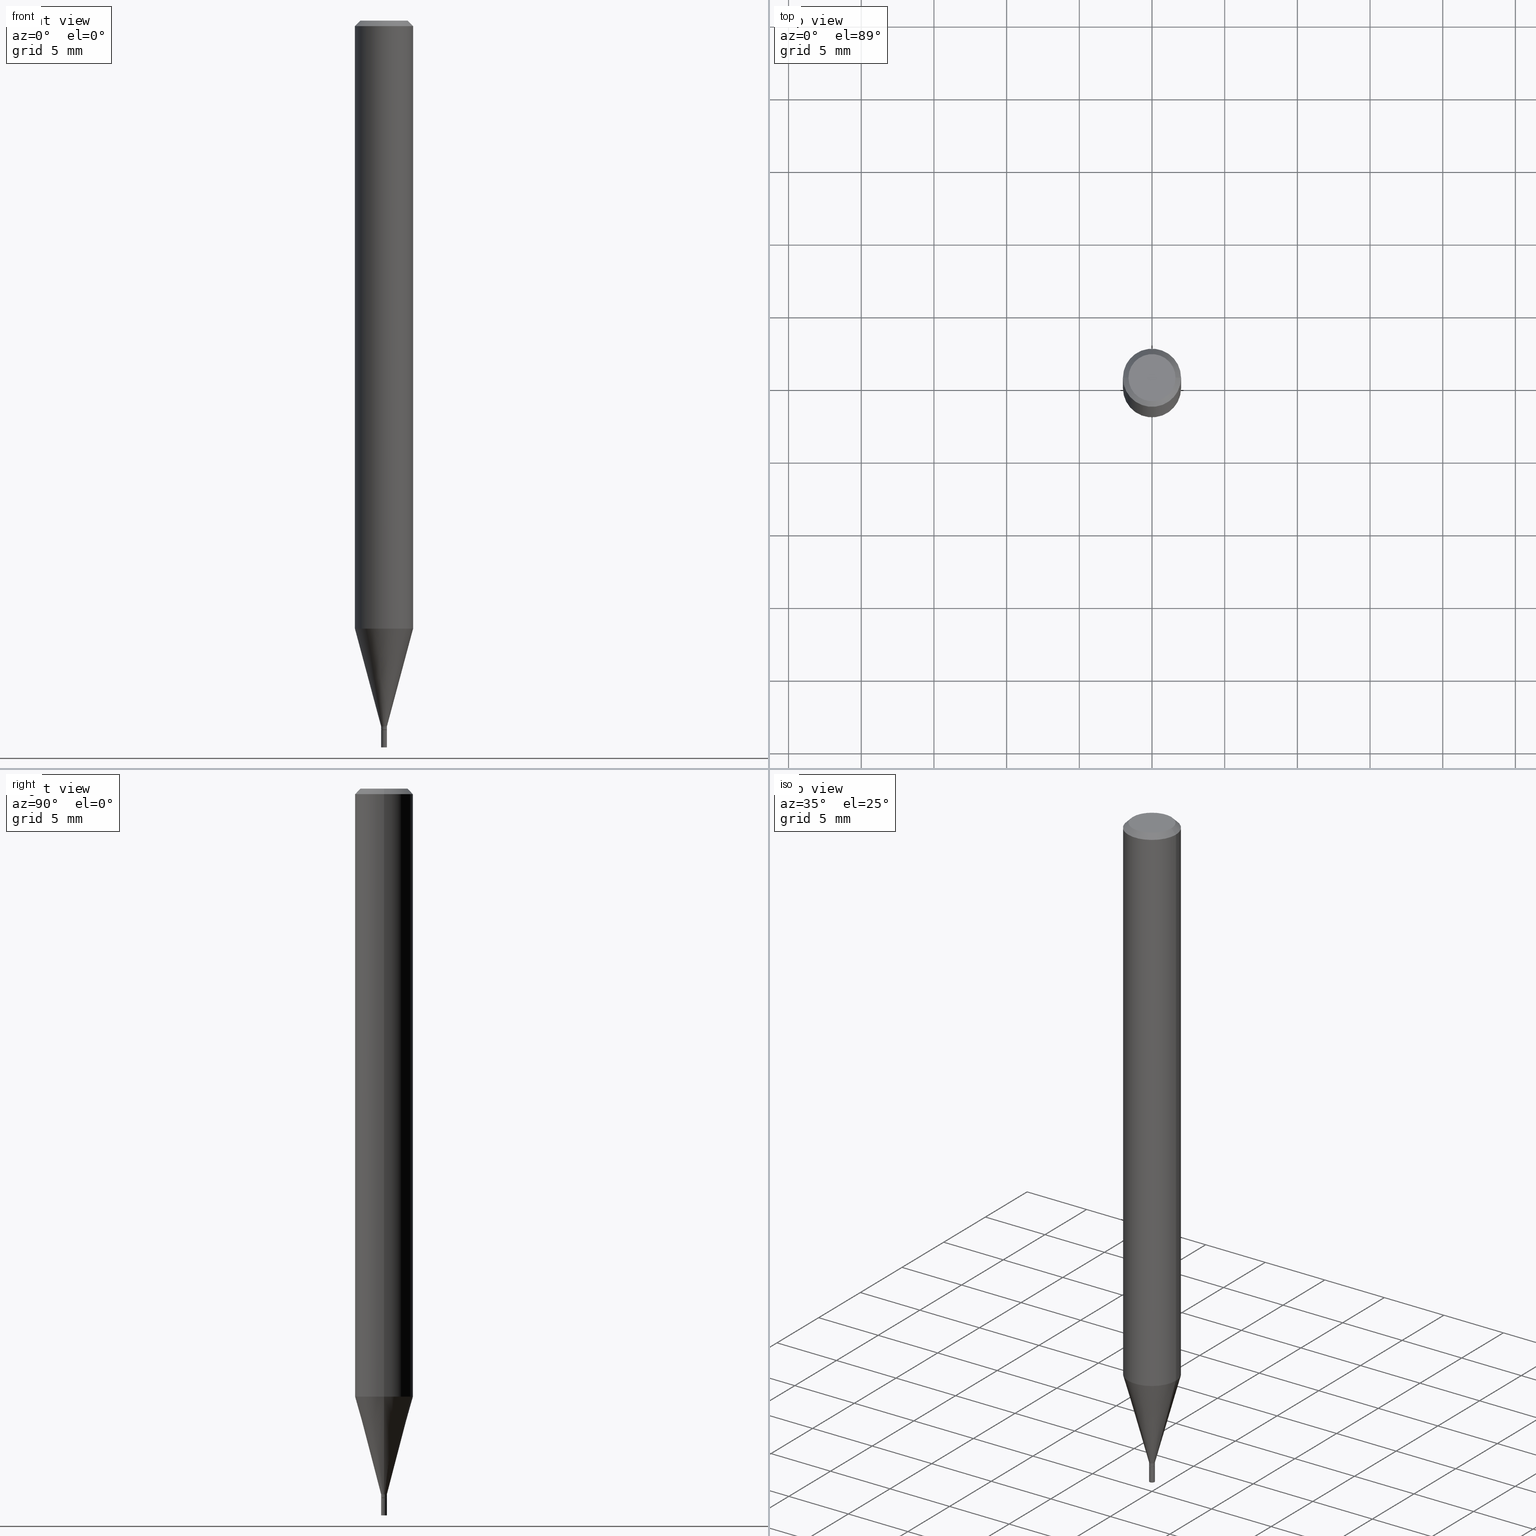
[diagram: canonical four-view strip — front | top / right | iso, engineering-drawing reading convention]
A machine part, canonical four-view strip (front | top / right | iso — engineering-drawing reading convention). The complete STEP part file that produces these views, byte-faithful:
ISO-10303-21;
HEADER;
FILE_DESCRIPTION (( 'STEP AP203' ),
    '1' );
FILE_NAME ('01877.STEP',
    '2024-03-20T02:18:43',
    ( '' ),
    ( '' ),
    'SwSTEP 2.0',
    'SolidWorks 2023',
    '' );
FILE_SCHEMA (( 'CONFIG_CONTROL_DESIGN' ));
ENDSEC;

DATA;
#1 = EDGE_CURVE ( 'NONE', #133, #443, #170, .T. ) ;
#2 = FACE_OUTER_BOUND ( 'NONE', #137, .T. ) ;
#3 = VECTOR ( 'NONE', #258, 39.37007874015748143 ) ;
#4 = CONICAL_SURFACE ( 'NONE', #309, 0.007349999999999998895, 0.7853981633974718157 ) ;
#5 = DIRECTION ( 'NONE',  ( 1.000000000000000000, -6.982962677686261977E-15, 0.000000000000000000 ) ) ;
#6 = CIRCLE ( 'NONE', #236, 0.06375000000000000111 ) ;
#7 = PERSON_AND_ORGANIZATION ( #193, #225 ) ;
#8 = ORIENTED_EDGE ( 'NONE', *, *, #269, .T. ) ;
#9 = CARTESIAN_POINT ( 'NONE',  ( 0.007849999999999917807, -6.728782836218509990E-15, -1.911499999999999977 ) ) ;
#10 = COORDINATED_UNIVERSAL_TIME_OFFSET ( 5, 0, .BEHIND. ) ;
#11 = CALENDAR_DATE ( 2024, 19, 3 ) ;
#12 = AXIS2_PLACEMENT_3D ( 'NONE', #409, #113, #194 ) ;
#13 = AXIS2_PLACEMENT_3D ( 'NONE', #99, #349, #93 ) ;
#14 = CALENDAR_DATE ( 2024, 19, 3 ) ;
#15 = EDGE_CURVE ( 'NONE', #291, #54, #65, .T. ) ;
#16 = DIRECTION ( 'NONE',  ( 0.000000000000000000, 0.000000000000000000, 1.000000000000000000 ) ) ;
#17 = CC_DESIGN_PERSON_AND_ORGANIZATION_ASSIGNMENT ( #226, #405, ( #310 ) ) ;
#18 = MECHANICAL_CONTEXT ( 'NONE', #285, 'mechanical' ) ;
#19 = DIRECTION ( 'NONE',  ( 1.000000000000000000, -6.982962677686265922E-15, 4.947888571036530338E-29 ) ) ;
#20 = PRODUCT_DEFINITION_SHAPE ( 'NONE', 'NONE',  #435 ) ;
#21 = CLOSED_SHELL ( 'NONE', ( #134, #150, #75, #326 ) ) ;
#22 = CARTESIAN_POINT ( 'NONE',  ( 3.668203209277705088E-31, -5.237222008264718399E-17, -0.01499999999999999944 ) ) ;
#23 = ORIENTED_EDGE ( 'NONE', *, *, #269, .F. ) ;
#24 = PLANE ( 'NONE',  #343 ) ;
#25 = AXIS2_PLACEMENT_3D ( 'NONE', #46, #308, #331 ) ;
#26 = DIRECTION ( 'NONE',  ( -2.445468806185136597E-29, 3.491481338843145583E-15, 1.000000000000000000 ) ) ;
#27 = VERTEX_POINT ( 'NONE', #35 ) ;
#28 = CARTESIAN_POINT ( 'NONE',  ( -0.007849999999999999339, -6.734804451158865551E-15, -1.921300000000000008 ) ) ;
#29 = ORIENTED_EDGE ( 'NONE', *, *, #120, .T. ) ;
#30 = DATE_AND_TIME ( #275, #49 ) ;
#31 = CONICAL_SURFACE ( 'NONE', #300, 0.07875000000000000056, 0.7853981633974771448 ) ;
#32 = DIRECTION ( 'NONE',  ( 1.000000000000000000, -6.982962677686261977E-15, 0.000000000000000000 ) ) ;
#33 = EDGE_LOOP ( 'NONE', ( #62, #374, #56, #356 ) ) ;
#34 = COORDINATED_UNIVERSAL_TIME_OFFSET ( 5, 0, .BEHIND. ) ;
#35 = CARTESIAN_POINT ( 'NONE',  ( -0.06375000000000000111, 4.713499807438214450E-16, -8.648154804784131215E-16 ) ) ;
#36 = DIRECTION ( 'NONE',  ( -2.445468806185136597E-29, 3.491481338843145583E-15, 1.000000000000000000 ) ) ;
#37 = ADVANCED_BREP_SHAPE_REPRESENTATION ( '01877', ( #235, #400, #448 ), #335 ) ;
#38 = VERTEX_POINT ( 'NONE', #319 ) ;
#39 = CIRCLE ( 'NONE', #95, 0.007849999999999917807 ) ;
#40 = CARTESIAN_POINT ( 'NONE',  ( 0.07875000000000000056, -6.300020540374364263E-15, -1.646897597743366859 ) ) ;
#41 = DIRECTION ( 'NONE',  ( -2.445468806185136597E-29, 3.491481338843145583E-15, 1.000000000000000000 ) ) ;
#42 = ORIENTED_EDGE ( 'NONE', *, *, #228, .T. ) ;
#43 = APPROVAL_PERSON_ORGANIZATION ( #7, #398, #324 ) ;
#44 = DIRECTION ( 'NONE',  ( -2.445468806185136597E-29, 3.491481338843145583E-15, 1.000000000000000000 ) ) ;
#45 = DIRECTION ( 'NONE',  ( -2.445468806185136597E-29, 3.491481338843145583E-15, 1.000000000000000000 ) ) ;
#46 = CARTESIAN_POINT ( 'NONE',  ( 3.668203209277705088E-31, -5.237222008264718399E-17, -0.01499999999999999944 ) ) ;
#47 = DIRECTION ( 'NONE',  ( 1.000000000000000000, -6.982962677686276177E-15, 0.000000000000000000 ) ) ;
#48 = VECTOR ( 'NONE', #330, 39.37007874015748143 ) ;
#49 = LOCAL_TIME ( 22, 18, 43.00000000000000000, #462 ) ;
#50 = ORIENTED_EDGE ( 'NONE', *, *, #171, .F. ) ;
#51 = CARTESIAN_POINT ( 'NONE',  ( -0.007849999999999999339, -6.734804451158865551E-15, -1.968500000000000139 ) ) ;
#52 = CC_DESIGN_PERSON_AND_ORGANIZATION_ASSIGNMENT ( #79, #207, ( #369 ) ) ;
#53 = DIRECTION ( 'NONE',  ( -2.445468806185136597E-29, 3.491481338843145583E-15, 1.000000000000000000 ) ) ;
#54 = VERTEX_POINT ( 'NONE', #366 ) ;
#55 = ADVANCED_FACE ( 'NONE', ( #371 ), #205, .T. ) ;
#56 = ORIENTED_EDGE ( 'NONE', *, *, #358, .F. ) ;
#57 = AXIS2_PLACEMENT_3D ( 'NONE', #347, #26, #446 ) ;
#58 = CC_DESIGN_DATE_AND_TIME_ASSIGNMENT ( #30, #183, ( #435 ) ) ;
#59 = ORIENTED_EDGE ( 'NONE', *, *, #242, .F. ) ;
#60 = EDGE_CURVE ( 'NONE', #459, #161, #223, .T. ) ;
#61 = ORIENTED_EDGE ( 'NONE', *, *, #247, .F. ) ;
#62 = ORIENTED_EDGE ( 'NONE', *, *, #383, .T. ) ;
#63 = CLOSED_SHELL ( 'NONE', ( #339, #146, #55, #237, #379, #68, #456, #210, #202, #252, #267, #83 ) ) ;
#64 = ORIENTED_EDGE ( 'NONE', *, *, #87, .T. ) ;
#65 = LINE ( 'NONE', #209, #196 ) ;
#66 = DIRECTION ( 'NONE',  ( -2.445468806185136597E-29, 3.491481338843145583E-15, 1.000000000000000000 ) ) ;
#67 = ORIENTED_EDGE ( 'NONE', *, *, #136, .T. ) ;
#68 = ADVANCED_FACE ( 'NONE', ( #450 ), #272, .T. ) ;
#69 = DIRECTION ( 'NONE',  ( 1.000000000000000000, -6.982962677686261189E-15, 0.000000000000000000 ) ) ;
#70 = CARTESIAN_POINT ( 'NONE',  ( 0.000000000000000000, 0.000000000000000000, 0.000000000000000000 ) ) ;
#71 = ORIENTED_EDGE ( 'NONE', *, *, #136, .F. ) ;
#72 = DIRECTION ( 'NONE',  ( 1.000000000000000000, -6.982962677686267499E-15, 4.876176775795936353E-29 ) ) ;
#73 = SHAPE_DEFINITION_REPRESENTATION ( #20, #37 ) ;
#74 = CARTESIAN_POINT ( 'NONE',  ( -0.007849999999999917807, -5.904374399768500220E-15, -1.911499999999999977 ) ) ;
#75 = ADVANCED_FACE ( 'NONE', ( #382 ), #424, .T. ) ;
#76 = ORIENTED_EDGE ( 'NONE', *, *, #296, .F. ) ;
#77 = CARTESIAN_POINT ( 'NONE',  ( 0.07875000000000000056, -5.926364374071552647E-16, -0.01499999999999999944 ) ) ;
#78 = AXIS2_PLACEMENT_3D ( 'NONE', #70, #41, #381 ) ;
#79 = PERSON_AND_ORGANIZATION ( #193, #225 ) ;
#80 = CARTESIAN_POINT ( 'NONE',  ( -0.007849999999999919542, 5.577760475716729290E-17, -3.861364045850061986E-31 ) ) ;
#81 = EDGE_CURVE ( 'NONE', #318, #54, #334, .T. ) ;
#82 = DIRECTION ( 'NONE',  ( 1.000000000000000000, -6.982962677686265922E-15, 0.000000000000000000 ) ) ;
#83 = ADVANCED_FACE ( 'NONE', ( #257 ), #276, .T. ) ;
#84 = PLANE ( 'NONE',  #253 ) ;
#85 = CIRCLE ( 'NONE', #351, 0.007849999999999999339 ) ;
#86 = ORIENTED_EDGE ( 'NONE', *, *, #296, .T. ) ;
#87 = EDGE_CURVE ( 'NONE', #128, #443, #428, .T. ) ;
#88 = DIRECTION ( 'NONE',  ( -1.000000000000000000, 6.982962677686265922E-15, 0.000000000000000000 ) ) ;
#89 = ORIENTED_EDGE ( 'NONE', *, *, #260, .F. ) ;
#90 = DIRECTION ( 'NONE',  ( 1.000000000000000000, -6.982962677686265922E-15, 4.947888571036530338E-29 ) ) ;
#91 = DIRECTION ( 'NONE',  ( 1.000000000000000000, -6.982962677686265922E-15, 4.876176775795935793E-29 ) ) ;
#92 = CC_DESIGN_PERSON_AND_ORGANIZATION_ASSIGNMENT ( #138, #313, ( #435 ) ) ;
#93 = DIRECTION ( 'NONE',  ( 1.000000000000000000, -6.982962677686267499E-15, 4.876176775795936353E-29 ) ) ;
#94 = FACE_OUTER_BOUND ( 'NONE', #227, .T. ) ;
#95 = AXIS2_PLACEMENT_3D ( 'NONE', #110, #222, #115 ) ;
#96 = VECTOR ( 'NONE', #214, 39.37007874015748143 ) ;
#97 = DIRECTION ( 'NONE',  ( 2.438088387897960049E-29, -3.491481338843145188E-15, -1.000000000000000000 ) ) ;
#98 = VERTEX_POINT ( 'NONE', #404 ) ;
#99 = CARTESIAN_POINT ( 'NONE',  ( 0.000000000000000000, 0.000000000000000000, 0.000000000000000000 ) ) ;
#100 = EDGE_CURVE ( 'NONE', #54, #318, #314, .T. ) ;
#101 = EDGE_LOOP ( 'NONE', ( #240, #322, #23, #61 ) ) ;
#102 = ORIENTED_EDGE ( 'NONE', *, *, #81, .T. ) ;
#103 = CYLINDRICAL_SURFACE ( 'NONE', #13, 0.007849999999999919542 ) ;
#104 = CIRCLE ( 'NONE', #447, 0.007849999999999917807 ) ;
#105 = CIRCLE ( 'NONE', #123, 0.007849999999999921277 ) ;
#106 = CIRCLE ( 'NONE', #25, 0.07875000000000000056 ) ;
#107 = DIRECTION ( 'NONE',  ( -2.445468806185136597E-29, 3.491481338843145583E-15, 1.000000000000000000 ) ) ;
#108 = DIRECTION ( 'NONE',  ( 1.000000000000000000, -6.982962677686327453E-15, 0.000000000000000000 ) ) ;
#109 = EDGE_LOOP ( 'NONE', ( #126, #421 ) ) ;
#110 = CARTESIAN_POINT ( 'NONE',  ( 4.674513623022888811E-29, -6.673966579198673201E-15, -1.911499999999999977 ) ) ;
#111 = LINE ( 'NONE', #188, #320 ) ;
#112 = PERSON_AND_ORGANIZATION ( #193, #225 ) ;
#113 = DIRECTION ( 'NONE',  ( -2.438088387897960049E-29, 3.491481338843145188E-15, 1.000000000000000000 ) ) ;
#114 = AXIS2_PLACEMENT_3D ( 'NONE', #187, #44, #200 ) ;
#115 = DIRECTION ( 'NONE',  ( 1.000000000000000000, -6.982962677686276177E-15, 0.000000000000000000 ) ) ;
#116 = DIRECTION ( 'NONE',  ( 1.000000000000000000, -6.982962677686265922E-15, 4.876176775795935793E-29 ) ) ;
#117 = CARTESIAN_POINT ( 'NONE',  ( 4.697256482920410546E-29, -6.706437355649914745E-15, -1.920800000000000285 ) ) ;
#118 = APPROVAL ( #218, 'UNSPECIFIED' ) ;
#119 = ORIENTED_EDGE ( 'NONE', *, *, #60, .T. ) ;
#120 = EDGE_CURVE ( 'NONE', #291, #176, #411, .T. ) ;
#121 = FACE_OUTER_BOUND ( 'NONE', #213, .T. ) ;
#122 = CONICAL_SURFACE ( 'NONE', #114, 0.007349999999999998895, 0.7853981633974718157 ) ;
#123 = AXIS2_PLACEMENT_3D ( 'NONE', #165, #66, #211 ) ;
#124 = ORIENTED_EDGE ( 'NONE', *, *, #81, .F. ) ;
#125 = DIRECTION ( 'NONE',  ( -1.000000000000000000, 6.982962677686265922E-15, 0.000000000000000000 ) ) ;
#126 = ORIENTED_EDGE ( 'NONE', *, *, #383, .F. ) ;
#127 = DIRECTION ( 'NONE',  ( -2.445468806185136597E-29, 3.491481338843145583E-15, 1.000000000000000000 ) ) ;
#128 = VERTEX_POINT ( 'NONE', #365 ) ;
#129 = VERTEX_POINT ( 'NONE', #74 ) ;
#130 = CC_DESIGN_APPROVAL ( #398, ( #273 ) ) ;
#131 = CARTESIAN_POINT ( 'NONE',  ( 0.06375000000000000111, -5.149965923825467057E-16, -8.648154804784066134E-16 ) ) ;
#132 = FACE_OUTER_BOUND ( 'NONE', #243, .T. ) ;
#133 = VERTEX_POINT ( 'NONE', #9 ) ;
#134 = ADVANCED_FACE ( 'NONE', ( #142 ), #401, .T. ) ;
#135 = CYLINDRICAL_SURFACE ( 'NONE', #429, 0.07875000000000000056 ) ;
#136 = EDGE_CURVE ( 'NONE', #27, #277, #292, .T. ) ;
#137 = EDGE_LOOP ( 'NONE', ( #387, #102 ) ) ;
#138 = PERSON_AND_ORGANIZATION ( #193, #225 ) ;
#139 = AXIS2_PLACEMENT_3D ( 'NONE', #180, #297, #108 ) ;
#140 = DIRECTION ( 'NONE',  ( -2.445468806185136597E-29, 3.491481338843145583E-15, 1.000000000000000000 ) ) ;
#141 = CARTESIAN_POINT ( 'NONE',  ( 4.698479217323503348E-29, -6.708183096319335459E-15, -1.921300000000000008 ) ) ;
#142 = FACE_OUTER_BOUND ( 'NONE', #407, .T. ) ;
#143 = CARTESIAN_POINT ( 'NONE',  ( 0.000000000000000000, 0.000000000000000000, 0.000000000000000000 ) ) ;
#144 = DATE_AND_TIME ( #14, #198 ) ;
#145 = DIRECTION ( 'NONE',  ( -2.445468806185136597E-29, 3.491481338843145583E-15, 1.000000000000000000 ) ) ;
#146 = ADVANCED_FACE ( 'NONE', ( #449 ), #4, .T. ) ;
#147 = DIRECTION ( 'NONE',  ( 0.7071067811865678898, -7.319954787623323887E-15, -0.7071067811865271446 ) ) ;
#148 = CARTESIAN_POINT ( 'NONE',  ( 4.698479217323503348E-29, -6.708183096319335459E-15, -1.921300000000000008 ) ) ;
#149 = VECTOR ( 'NONE', #293, 39.37007874015748143 ) ;
#150 = ADVANCED_FACE ( 'NONE', ( #416 ), #24, .F. ) ;
#151 = CC_DESIGN_APPROVAL ( #287, ( #435 ) ) ;
#152 = DIRECTION ( 'NONE',  ( -2.445468806185136597E-29, 3.491481338843145583E-15, 1.000000000000000000 ) ) ;
#153 = VERTEX_POINT ( 'NONE', #373 ) ;
#154 = DIRECTION ( 'NONE',  ( 1.000000000000000000, -6.982962677686265922E-15, 4.876176775795935232E-29 ) ) ;
#155 = ORIENTED_EDGE ( 'NONE', *, *, #465, .F. ) ;
#156 = CARTESIAN_POINT ( 'NONE',  ( 4.848906058769445083E-29, -6.822858001242805551E-15, -1.968500000000000139 ) ) ;
#157 = LINE ( 'NONE', #385, #367 ) ;
#158 = DIRECTION ( 'NONE',  ( 2.445468806185136597E-29, -3.491481338843145583E-15, -1.000000000000000000 ) ) ;
#159 = AXIS2_PLACEMENT_3D ( 'NONE', #233, #282, #32 ) ;
#160 = AXIS2_PLACEMENT_3D ( 'NONE', #399, #107, #241 ) ;
#161 = VERTEX_POINT ( 'NONE', #453 ) ;
#162 = CARTESIAN_POINT ( 'NONE',  ( 0.000000000000000000, 0.000000000000000000, 0.000000000000000000 ) ) ;
#163 = ORIENTED_EDGE ( 'NONE', *, *, #260, .T. ) ;
#164 = EDGE_LOOP ( 'NONE', ( #155, #229, #451, #232 ) ) ;
#165 = CARTESIAN_POINT ( 'NONE',  ( 4.697256482920410546E-29, -6.706437355649914745E-15, -1.920800000000000285 ) ) ;
#166 = APPROVAL_ROLE ( '' ) ;
#167 = DIRECTION ( 'NONE',  ( -2.445468806185136597E-29, 3.491481338843145583E-15, 1.000000000000000000 ) ) ;
#168 = EDGE_CURVE ( 'NONE', #443, #98, #186, .T. ) ;
#169 = VECTOR ( 'NONE', #437, 39.37007874015748143 ) ;
#170 = LINE ( 'NONE', #278, #436 ) ;
#171 = EDGE_CURVE ( 'NONE', #98, #153, #463, .T. ) ;
#172 = DATE_AND_TIME ( #279, #412 ) ;
#173 = ORIENTED_EDGE ( 'NONE', *, *, #184, .F. ) ;
#174 = CARTESIAN_POINT ( 'NONE',  ( 4.698479217323503348E-29, -6.708183096319335459E-15, -1.921300000000000008 ) ) ;
#175 = DATE_AND_TIME ( #197, #353 ) ;
#176 = VERTEX_POINT ( 'NONE', #51 ) ;
#177 = AXIS2_PLACEMENT_3D ( 'NONE', #442, #288, #294 ) ;
#178 = PERSON_AND_ORGANIZATION ( #193, #225 ) ;
#179 = DIRECTION ( 'NONE',  ( -2.445468806185136597E-29, 3.491481338843145583E-15, 1.000000000000000000 ) ) ;
#180 = CARTESIAN_POINT ( 'NONE',  ( 4.698479217323503348E-29, -6.708183096319335459E-15, -1.921300000000000008 ) ) ;
#181 = EDGE_LOOP ( 'NONE', ( #59, #42, #289, #124 ) ) ;
#182 =( LENGTH_UNIT ( ) NAMED_UNIT ( * ) SI_UNIT ( $, .METRE. ) );
#183 = DATE_TIME_ROLE ( 'creation_date' ) ;
#184 = EDGE_CURVE ( 'NONE', #153, #98, #106, .T. ) ;
#185 = LINE ( 'NONE', #77, #283 ) ;
#186 = LINE ( 'NONE', #189, #3 ) ;
#187 = CARTESIAN_POINT ( 'NONE',  ( 4.698479217323503348E-29, -6.708183096319335459E-15, -1.921300000000000008 ) ) ;
#188 = CARTESIAN_POINT ( 'NONE',  ( -0.07875000000000000056, 4.975360907851462665E-16, -0.01499999999999999944 ) ) ;
#189 = CARTESIAN_POINT ( 'NONE',  ( 0.07875000000000000056, -5.499083108677934443E-16, 3.839989210939299016E-30 ) ) ;
#190 = AXIS2_PLACEMENT_3D ( 'NONE', #143, #251, #72 ) ;
#191 = DIRECTION ( 'NONE',  ( -1.000000000000000000, 6.982962677686265922E-15, -4.876176775795935793E-29 ) ) ;
#192 = DIMENSIONAL_EXPONENTS ( 1.000000000000000000, 0.000000000000000000, 0.000000000000000000, 0.000000000000000000, 0.000000000000000000, 0.000000000000000000, 0.000000000000000000 ) ;
#193 = PERSON ( 'UNSPECIFIED', 'UNSPECIFIED', 'UNSPECIFIED', ('UNSPECIFIED'), ('UNSPECIFIED'), ('UNSPECIFIED') ) ;
#194 = DIRECTION ( 'NONE',  ( 1.000000000000000000, -6.982962677686265922E-15, 4.876176775795935793E-29 ) ) ;
#195 = PLANE ( 'NONE',  #362 ) ;
#196 = VECTOR ( 'NONE', #357, 39.37007874015748143 ) ;
#197 = CALENDAR_DATE ( 2024, 19, 3 ) ;
#198 = LOCAL_TIME ( 22, 18, 43.00000000000000000, #327 ) ;
#199 = EDGE_LOOP ( 'NONE', ( #392, #417, #305, #204 ) ) ;
#200 = DIRECTION ( 'NONE',  ( 1.000000000000000000, -6.982962677686261189E-15, 0.000000000000000000 ) ) ;
#201 = FACE_OUTER_BOUND ( 'NONE', #101, .T. ) ;
#202 = ADVANCED_FACE ( 'NONE', ( #336 ), #84, .F. ) ;
#203 = DIRECTION ( 'NONE',  ( -1.000000000000000000, 6.982962677686265922E-15, -4.876176775795935793E-29 ) ) ;
#204 = ORIENTED_EDGE ( 'NONE', *, *, #60, .F. ) ;
#205 = CONICAL_SURFACE ( 'NONE', #455, 0.07875000000000000056, 0.7853981633974771448 ) ;
#206 = APPROVAL_STATUS ( 'not_yet_approved' ) ;
#207 = PERSON_AND_ORGANIZATION_ROLE ( 'design_owner' ) ;
#208 = ORIENTED_EDGE ( 'NONE', *, *, #307, .F. ) ;
#209 = CARTESIAN_POINT ( 'NONE',  ( 0.007849999999999999339, -5.481625701983718421E-17, 3.827798768999809240E-31 ) ) ;
#210 = ADVANCED_FACE ( 'NONE', ( #121 ), #31, .T. ) ;
#211 = DIRECTION ( 'NONE',  ( 1.000000000000000000, -6.982962677686273021E-15, 0.000000000000000000 ) ) ;
#212 = DIRECTION ( 'NONE',  ( 1.000000000000000000, -6.982962677686261189E-15, 0.000000000000000000 ) ) ;
#213 = EDGE_LOOP ( 'NONE', ( #76, #71, #163, #354 ) ) ;
#214 = DIRECTION ( 'NONE',  ( 0.7071067811865642261, -2.468850131082431399E-15, 0.7071067811865309194 ) ) ;
#215 = AXIS2_PLACEMENT_3D ( 'NONE', #117, #152, #259 ) ;
#216 = EDGE_CURVE ( 'NONE', #38, #459, #266, .T. ) ;
#217 = APPROVAL_STATUS ( 'not_yet_approved' ) ;
#218 = APPROVAL_STATUS ( 'not_yet_approved' ) ;
#219 = ORIENTED_EDGE ( 'NONE', *, *, #280, .T. ) ;
#220 = EDGE_CURVE ( 'NONE', #459, #129, #256, .T. ) ;
#221 = APPLICATION_PROTOCOL_DEFINITION ( 'international standard', 'config_control_design', 1994, #285 ) ;
#222 = DIRECTION ( 'NONE',  ( -2.445468806185136597E-29, 3.491481338843145583E-15, 1.000000000000000000 ) ) ;
#223 = CIRCLE ( 'NONE', #215, 0.007849999999999921277 ) ;
#224 = DIRECTION ( 'NONE',  ( -0.7071067811865678898, 2.468850131082470447E-15, -0.7071067811865271446 ) ) ;
#225 = ORGANIZATION ( 'UNSPECIFIED', 'UNSPECIFIED', '' ) ;
#226 = PERSON_AND_ORGANIZATION ( #193, #225 ) ;
#227 = EDGE_LOOP ( 'NONE', ( #219, #384, #50, #303 ) ) ;
#228 = EDGE_CURVE ( 'NONE', #176, #291, #85, .T. ) ;
#229 = ORIENTED_EDGE ( 'NONE', *, *, #307, .T. ) ;
#230 = CARTESIAN_POINT ( 'NONE',  ( 4.451638707024993845E-16, 0.06375000000000000111, -6.549896755904555627E-16 ) ) ;
#231 = PERSON_AND_ORGANIZATION_ROLE ( 'classification_officer' ) ;
#232 = ORIENTED_EDGE ( 'NONE', *, *, #87, .F. ) ;
#233 = CARTESIAN_POINT ( 'NONE',  ( 4.027436702262640523E-29, -5.750112229506570917E-15, -1.646897597743366859 ) ) ;
#234 = UNCERTAINTY_MEASURE_WITH_UNIT (LENGTH_MEASURE( 1.000000000000000082E-05 ), #249, 'distance_accuracy_value', 'NONE');
#235 = MANIFOLD_SOLID_BREP ( 'Body-Move/Copy2[1]', #21 ) ;
#236 = AXIS2_PLACEMENT_3D ( 'NONE', #460, #127, #90 ) ;
#237 = ADVANCED_FACE ( 'NONE', ( #94 ), #378, .T. ) ;
#238 = ORIENTED_EDGE ( 'NONE', *, *, #15, .F. ) ;
#239 = CARTESIAN_POINT ( 'NONE',  ( -0.07875000000000000056, 5.595524044110789003E-16, -3.873661383575737792E-30 ) ) ;
#240 = ORIENTED_EDGE ( 'NONE', *, *, #358, .T. ) ;
#241 = DIRECTION ( 'NONE',  ( 1.000000000000000000, -6.982962677686276177E-15, 0.000000000000000000 ) ) ;
#242 = EDGE_CURVE ( 'NONE', #176, #318, #306, .T. ) ;
#243 = EDGE_LOOP ( 'NONE', ( #8, #433, #274, #440 ) ) ;
#244 = DIRECTION ( 'NONE',  ( 0.2588190451025212391, 1.565188264969622362E-15, 0.9659258262890679791 ) ) ;
#245 = VECTOR ( 'NONE', #426, 39.37007874015748143 ) ;
#246 = FACE_OUTER_BOUND ( 'NONE', #427, .T. ) ;
#247 = EDGE_CURVE ( 'NONE', #161, #133, #157, .T. ) ;
#248 = AXIS2_PLACEMENT_3D ( 'NONE', #337, #298, #82 ) ;
#249 =( CONVERSION_BASED_UNIT ( 'INCH', #325 ) LENGTH_UNIT ( ) NAMED_UNIT ( #192 ) );
#250 = CARTESIAN_POINT ( 'NONE',  ( 4.027436702262640523E-29, -5.750112229506570917E-15, -1.646897597743366859 ) ) ;
#251 = DIRECTION ( 'NONE',  ( -2.445468806185136597E-29, 3.491481338843145583E-15, 1.000000000000000000 ) ) ;
#252 = ADVANCED_FACE ( 'NONE', ( #461 ), #263, .F. ) ;
#253 = AXIS2_PLACEMENT_3D ( 'NONE', #230, #377, #191 ) ;
#254 = AXIS2_PLACEMENT_3D ( 'NONE', #174, #36, #69 ) ;
#255 = CC_DESIGN_SECURITY_CLASSIFICATION ( #273, ( #310 ) ) ;
#256 = LINE ( 'NONE', #80, #169 ) ;
#257 = FACE_OUTER_BOUND ( 'NONE', #434, .T. ) ;
#258 = DIRECTION ( 'NONE',  ( -2.445468806185136877E-29, 3.491481338843145188E-15, 1.000000000000000000 ) ) ;
#259 = DIRECTION ( 'NONE',  ( 1.000000000000000000, -6.982962677686273021E-15, 0.000000000000000000 ) ) ;
#260 = EDGE_CURVE ( 'NONE', #27, #153, #111, .T. ) ;
#261 = DIRECTION ( 'NONE',  ( -2.445468806185136597E-29, 3.491481338843145583E-15, 1.000000000000000000 ) ) ;
#262 = ORIENTED_EDGE ( 'NONE', *, *, #100, .F. ) ;
#263 = PLANE ( 'NONE',  #12 ) ;
#264 = AXIS2_PLACEMENT_3D ( 'NONE', #162, #420, #154 ) ;
#265 = EDGE_LOOP ( 'NONE', ( #67, #270 ) ) ;
#266 = LINE ( 'NONE', #422, #48 ) ;
#267 = ADVANCED_FACE ( 'NONE', ( #370 ), #122, .T. ) ;
#268 = COORDINATED_UNIVERSAL_TIME_OFFSET ( 5, 0, .BEHIND. ) ;
#269 = EDGE_CURVE ( 'NONE', #133, #129, #104, .T. ) ;
#270 = ORIENTED_EDGE ( 'NONE', *, *, #372, .T. ) ;
#271 = CARTESIAN_POINT ( 'NONE',  ( 5.481625701988416458E-17, 0.007849999999993291164, -1.921300000000000008 ) ) ;
#272 = CONICAL_SURFACE ( 'NONE', #375, 0.007849999999999917807, 0.2617993877991499629 ) ;
#273 = SECURITY_CLASSIFICATION ( '', '', #333 ) ;
#274 = ORIENTED_EDGE ( 'NONE', *, *, #280, .F. ) ;
#275 = CALENDAR_DATE ( 2024, 19, 3 ) ;
#276 = CYLINDRICAL_SURFACE ( 'NONE', #190, 0.007849999999999919542 ) ;
#277 = VERTEX_POINT ( 'NONE', #131 ) ;
#278 = CARTESIAN_POINT ( 'NONE',  ( 0.007849999999999917807, -6.728782836218509990E-15, -1.911499999999999977 ) ) ;
#279 = CALENDAR_DATE ( 2024, 19, 3 ) ;
#280 = EDGE_CURVE ( 'NONE', #443, #128, #393, .T. ) ;
#281 = DIRECTION ( 'NONE',  ( 1.000000000000000000, -6.982962677686265922E-15, 4.876176775795935232E-29 ) ) ;
#282 = DIRECTION ( 'NONE',  ( -2.445468806185136597E-29, 3.491481338843145583E-15, 1.000000000000000000 ) ) ;
#283 = VECTOR ( 'NONE', #147, 39.37007874015748143 ) ;
#284 = VECTOR ( 'NONE', #364, 39.37007874015748854 ) ;
#285 = APPLICATION_CONTEXT ( 'configuration controlled 3d designs of mechanical parts and assemblies' ) ;
#286 = LINE ( 'NONE', #438, #284 ) ;
#287 = APPROVAL ( #206, 'UNSPECIFIED' ) ;
#288 = DIRECTION ( 'NONE',  ( -2.445468806185136597E-29, 3.491481338843145583E-15, 1.000000000000000000 ) ) ;
#289 = ORIENTED_EDGE ( 'NONE', *, *, #15, .T. ) ;
#290 = DATE_AND_TIME ( #11, #368 ) ;
#291 = VERTEX_POINT ( 'NONE', #423 ) ;
#292 = CIRCLE ( 'NONE', #402, 0.06375000000000000111 ) ;
#293 = DIRECTION ( 'NONE',  ( -2.445468806185136877E-29, 3.491481338843145188E-15, 1.000000000000000000 ) ) ;
#294 = DIRECTION ( 'NONE',  ( 1.000000000000000000, -6.982962677686327453E-15, 0.000000000000000000 ) ) ;
#295 = APPROVAL_DATE_TIME ( #290, #398 ) ;
#296 = EDGE_CURVE ( 'NONE', #277, #98, #185, .T. ) ;
#297 = DIRECTION ( 'NONE',  ( -2.445468806185136597E-29, 3.491481338843145583E-15, 1.000000000000000000 ) ) ;
#298 = DIRECTION ( 'NONE',  ( -2.445468806185136597E-29, 3.491481338843145583E-15, 1.000000000000000000 ) ) ;
#299 = CARTESIAN_POINT ( 'NONE',  ( 4.813905344975441835E-29, -6.872981015512731707E-15, -1.968500000000000139 ) ) ;
#300 = AXIS2_PLACEMENT_3D ( 'NONE', #458, #445, #125 ) ;
#301 = CONICAL_SURFACE ( 'NONE', #160, 0.007849999999999917807, 0.2617993877991499629 ) ;
#302 = DIRECTION ( 'NONE',  ( -2.445468806185136597E-29, 3.491481338843145583E-15, 1.000000000000000000 ) ) ;
#303 = ORIENTED_EDGE ( 'NONE', *, *, #168, .F. ) ;
#304 = DIRECTION ( 'NONE',  ( 1.000000000000000000, -6.982962677686327453E-15, 0.000000000000000000 ) ) ;
#305 = ORIENTED_EDGE ( 'NONE', *, *, #406, .T. ) ;
#306 = LINE ( 'NONE', #341, #245 ) ;
#307 = EDGE_CURVE ( 'NONE', #129, #133, #39, .T. ) ;
#308 = DIRECTION ( 'NONE',  ( -2.445468806185136597E-29, 3.491481338843145583E-15, 1.000000000000000000 ) ) ;
#309 = AXIS2_PLACEMENT_3D ( 'NONE', #148, #261, #452 ) ;
#310 = PRODUCT_DEFINITION_FORMATION_WITH_SPECIFIED_SOURCE ( 'ANY', '', #369, .NOT_KNOWN. ) ;
#311 = CARTESIAN_POINT ( 'NONE',  ( 0.007349999999999998895, -6.759507872000329242E-15, -1.921300000000000008 ) ) ;
#312 = PRODUCT_RELATED_PRODUCT_CATEGORY ( 'detail', '', ( #369 ) ) ;
#313 = PERSON_AND_ORGANIZATION_ROLE ( 'creator' ) ;
#314 = CIRCLE ( 'NONE', #139, 0.007849999999999999339 ) ;
#315 = DIRECTION ( 'NONE',  ( 1.000000000000000000, -6.982962677686276177E-15, 0.000000000000000000 ) ) ;
#316 = ORIENTED_EDGE ( 'NONE', *, *, #168, .T. ) ;
#317 = APPROVAL_DATE_TIME ( #172, #287 ) ;
#318 = VERTEX_POINT ( 'NONE', #28 ) ;
#319 = CARTESIAN_POINT ( 'NONE',  ( -0.007349999999999998895, -6.653308978066857913E-15, -1.921300000000000008 ) ) ;
#320 = VECTOR ( 'NONE', #224, 39.37007874015748143 ) ;
#321 = DATE_TIME_ROLE ( 'classification_date' ) ;
#322 = ORIENTED_EDGE ( 'NONE', *, *, #220, .T. ) ;
#323 = CARTESIAN_POINT ( 'NONE',  ( -0.007849999999999921277, -6.650659750892746712E-15, -1.920800000000000285 ) ) ;
#324 = APPROVAL_ROLE ( '' ) ;
#325 = LENGTH_MEASURE_WITH_UNIT ( LENGTH_MEASURE( 0.02539999999999999897 ), #182 );
#326 = ADVANCED_FACE ( 'NONE', ( #2 ), #195, .F. ) ;
#327 = COORDINATED_UNIVERSAL_TIME_OFFSET ( 5, 0, .BEHIND. ) ;
#328 = AXIS2_PLACEMENT_3D ( 'NONE', #250, #361, #5 ) ;
#329 = CARTESIAN_POINT ( 'NONE',  ( 0.000000000000000000, 0.000000000000000000, 0.000000000000000000 ) ) ;
#330 = DIRECTION ( 'NONE',  ( -0.7071067811865642261, 7.493145998870414114E-15, 0.7071067811865309194 ) ) ;
#331 = DIRECTION ( 'NONE',  ( 1.000000000000000000, -6.982962677686265922E-15, 0.000000000000000000 ) ) ;
#332 = EDGE_CURVE ( 'NONE', #128, #153, #345, .T. ) ;
#333 = SECURITY_CLASSIFICATION_LEVEL ( 'unclassified' ) ;
#334 = CIRCLE ( 'NONE', #57, 0.007849999999999999339 ) ;
#335 =( GEOMETRIC_REPRESENTATION_CONTEXT ( 3 ) GLOBAL_UNCERTAINTY_ASSIGNED_CONTEXT ( ( #234 ) ) GLOBAL_UNIT_ASSIGNED_CONTEXT ( ( #249, #466, #432 ) ) REPRESENTATION_CONTEXT ( 'NONE', 'WORKASPACE' ) );
#336 = FACE_OUTER_BOUND ( 'NONE', #265, .T. ) ;
#337 = CARTESIAN_POINT ( 'NONE',  ( 3.668203209277705088E-31, -5.237222008264718399E-17, -0.01499999999999999944 ) ) ;
#338 = ORIENTED_EDGE ( 'NONE', *, *, #120, .F. ) ;
#339 = ADVANCED_FACE ( 'NONE', ( #201 ), #103, .T. ) ;
#340 = CARTESIAN_POINT ( 'NONE',  ( 2.114879280615962586E-44, -3.019487111633037230E-30, -8.648154804784100646E-16 ) ) ;
#341 = CARTESIAN_POINT ( 'NONE',  ( -0.007849999999999999339, 5.577760475716785990E-17, -3.861364045850100522E-31 ) ) ;
#342 = CC_DESIGN_PERSON_AND_ORGANIZATION_ASSIGNMENT ( #112, #410, ( #310 ) ) ;
#343 = AXIS2_PLACEMENT_3D ( 'NONE', #156, #419, #116 ) ;
#344 = DIRECTION ( 'NONE',  ( -2.445468806185136877E-29, 3.491481338843145188E-15, 1.000000000000000000 ) ) ;
#345 = LINE ( 'NONE', #239, #149 ) ;
#346 = AXIS2_PLACEMENT_3D ( 'NONE', #141, #140, #212 ) ;
#347 = CARTESIAN_POINT ( 'NONE',  ( 4.698479217323503348E-29, -6.708183096319335459E-15, -1.921300000000000008 ) ) ;
#348 = ORIENTED_EDGE ( 'NONE', *, *, #332, .F. ) ;
#349 = DIRECTION ( 'NONE',  ( -2.445468806185136597E-29, 3.491481338843145583E-15, 1.000000000000000000 ) ) ;
#350 = CARTESIAN_POINT ( 'NONE',  ( 4.674513623022888811E-29, -6.673966579198673201E-15, -1.911499999999999977 ) ) ;
#351 = AXIS2_PLACEMENT_3D ( 'NONE', #299, #302, #304 ) ;
#352 = CC_DESIGN_PERSON_AND_ORGANIZATION_ASSIGNMENT ( #454, #231, ( #273 ) ) ;
#353 = LOCAL_TIME ( 22, 18, 43.00000000000000000, #268 ) ;
#354 = ORIENTED_EDGE ( 'NONE', *, *, #184, .T. ) ;
#355 = LINE ( 'NONE', #360, #96 ) ;
#356 = ORIENTED_EDGE ( 'NONE', *, *, #406, .F. ) ;
#357 = DIRECTION ( 'NONE',  ( -2.445468806185136877E-29, 3.491481338843145188E-15, 1.000000000000000000 ) ) ;
#358 = EDGE_CURVE ( 'NONE', #161, #459, #105, .T. ) ;
#359 = VERTEX_POINT ( 'NONE', #311 ) ;
#360 = CARTESIAN_POINT ( 'NONE',  ( 0.007349999999999998895, -6.759507872000329242E-15, -1.921300000000000008 ) ) ;
#361 = DIRECTION ( 'NONE',  ( -2.445468806185136597E-29, 3.491481338843145583E-15, 1.000000000000000000 ) ) ;
#362 = AXIS2_PLACEMENT_3D ( 'NONE', #271, #97, #203 ) ;
#363 = APPROVAL_PERSON_ORGANIZATION ( #178, #287, #166 ) ;
#364 = DIRECTION ( 'NONE',  ( -0.2588190451025212391, 5.211531920934549464E-15, 0.9659258262890679791 ) ) ;
#365 = CARTESIAN_POINT ( 'NONE',  ( -0.07875000000000000056, -5.190559825095492905E-15, -1.646897597743366859 ) ) ;
#366 = CARTESIAN_POINT ( 'NONE',  ( 0.007849999999999999339, -6.762999353339173038E-15, -1.921300000000000008 ) ) ;
#367 = VECTOR ( 'NONE', #344, 39.37007874015748143 ) ;
#368 = LOCAL_TIME ( 22, 18, 43.00000000000000000, #10 ) ;
#369 = PRODUCT ( '01877', '01877', '', ( #18 ) ) ;
#370 = FACE_OUTER_BOUND ( 'NONE', #199, .T. ) ;
#371 = FACE_OUTER_BOUND ( 'NONE', #395, .T. ) ;
#372 = EDGE_CURVE ( 'NONE', #277, #27, #6, .T. ) ;
#373 = CARTESIAN_POINT ( 'NONE',  ( -0.07875000000000000056, -2.341689820383530788E-15, -0.01499999999999999944 ) ) ;
#374 = ORIENTED_EDGE ( 'NONE', *, *, #216, .T. ) ;
#375 = AXIS2_PLACEMENT_3D ( 'NONE', #386, #45, #47 ) ;
#376 = CC_DESIGN_APPROVAL ( #118, ( #310 ) ) ;
#377 = DIRECTION ( 'NONE',  ( 2.438088387897960049E-29, -3.491481338843145188E-15, -1.000000000000000000 ) ) ;
#378 = CYLINDRICAL_SURFACE ( 'NONE', #264, 0.07875000000000000056 ) ;
#379 = ADVANCED_FACE ( 'NONE', ( #132 ), #301, .T. ) ;
#380 = CARTESIAN_POINT ( 'NONE',  ( 0.000000000000000000, 0.000000000000000000, 0.000000000000000000 ) ) ;
#381 = DIRECTION ( 'NONE',  ( 1.000000000000000000, -6.982962677686265922E-15, 4.876176775795935793E-29 ) ) ;
#382 = FACE_OUTER_BOUND ( 'NONE', #181, .T. ) ;
#383 = EDGE_CURVE ( 'NONE', #359, #38, #441, .T. ) ;
#384 = ORIENTED_EDGE ( 'NONE', *, *, #332, .T. ) ;
#385 = CARTESIAN_POINT ( 'NONE',  ( 0.007849999999999919542, -5.481625701983663571E-17, 3.827798768999770704E-31 ) ) ;
#386 = CARTESIAN_POINT ( 'NONE',  ( 4.674513623022888811E-29, -6.673966579198673201E-15, -1.911499999999999977 ) ) ;
#387 = ORIENTED_EDGE ( 'NONE', *, *, #100, .T. ) ;
#388 = DESIGN_CONTEXT ( 'detailed design', #403, 'design' ) ;
#389 = APPLICATION_PROTOCOL_DEFINITION ( 'international standard', 'config_control_design', 1994, #403 ) ;
#390 = EDGE_CURVE ( 'NONE', #38, #359, #457, .T. ) ;
#391 = ORIENTED_EDGE ( 'NONE', *, *, #228, .F. ) ;
#392 = ORIENTED_EDGE ( 'NONE', *, *, #216, .F. ) ;
#393 = CIRCLE ( 'NONE', #159, 0.07875000000000000056 ) ;
#394 = APPROVAL_PERSON_ORGANIZATION ( #414, #118, #413 ) ;
#395 = EDGE_LOOP ( 'NONE', ( #425, #86, #415, #89 ) ) ;
#396 = CARTESIAN_POINT ( 'NONE',  ( 0.000000000000000000, 0.000000000000000000, 0.000000000000000000 ) ) ;
#397 = ORIENTED_EDGE ( 'NONE', *, *, #247, .T. ) ;
#398 = APPROVAL ( #217, 'UNSPECIFIED' ) ;
#399 = CARTESIAN_POINT ( 'NONE',  ( 4.674513623022888811E-29, -6.673966579198673201E-15, -1.911499999999999977 ) ) ;
#400 = MANIFOLD_SOLID_BREP ( 'Body-Move/Copy2[2]', #63 ) ;
#401 = CYLINDRICAL_SURFACE ( 'NONE', #78, 0.007849999999999999339 ) ;
#402 = AXIS2_PLACEMENT_3D ( 'NONE', #340, #145, #19 ) ;
#403 = APPLICATION_CONTEXT ( 'configuration controlled 3d designs of mechanical parts and assemblies' ) ;
#404 = CARTESIAN_POINT ( 'NONE',  ( 0.07875000000000000056, -6.022805309504406221E-16, -0.01499999999999999944 ) ) ;
#405 = PERSON_AND_ORGANIZATION_ROLE ( 'design_supplier' ) ;
#406 = EDGE_CURVE ( 'NONE', #359, #161, #355, .T. ) ;
#407 = EDGE_LOOP ( 'NONE', ( #29, #430, #262, #238 ) ) ;
#408 = DIRECTION ( 'NONE',  ( 1.000000000000000000, 0.000000000000000000, 0.000000000000000000 ) ) ;
#409 = CARTESIAN_POINT ( 'NONE',  ( 4.698479217323503348E-29, -6.708183096319335459E-15, -1.921300000000000008 ) ) ;
#410 = PERSON_AND_ORGANIZATION_ROLE ( 'creator' ) ;
#411 = CIRCLE ( 'NONE', #177, 0.007849999999999999339 ) ;
#412 = LOCAL_TIME ( 22, 18, 43.00000000000000000, #34 ) ;
#413 = APPROVAL_ROLE ( '' ) ;
#414 = PERSON_AND_ORGANIZATION ( #193, #225 ) ;
#415 = ORIENTED_EDGE ( 'NONE', *, *, #171, .T. ) ;
#416 = FACE_OUTER_BOUND ( 'NONE', #464, .T. ) ;
#417 = ORIENTED_EDGE ( 'NONE', *, *, #390, .T. ) ;
#418 = CC_DESIGN_DATE_AND_TIME_ASSIGNMENT ( #175, #321, ( #273 ) ) ;
#419 = DIRECTION ( 'NONE',  ( -2.438088387897960049E-29, 3.491481338843145188E-15, 1.000000000000000000 ) ) ;
#420 = DIRECTION ( 'NONE',  ( -2.445468806185136597E-29, 3.491481338843145583E-15, 1.000000000000000000 ) ) ;
#421 = ORIENTED_EDGE ( 'NONE', *, *, #390, .F. ) ;
#422 = CARTESIAN_POINT ( 'NONE',  ( -0.007349999999999998895, -6.655958205240968326E-15, -1.921300000000000008 ) ) ;
#423 = CARTESIAN_POINT ( 'NONE',  ( 0.007849999999999999339, -6.927797272532570075E-15, -1.968500000000000139 ) ) ;
#424 = CYLINDRICAL_SURFACE ( 'NONE', #439, 0.007849999999999999339 ) ;
#425 = ORIENTED_EDGE ( 'NONE', *, *, #372, .F. ) ;
#426 = DIRECTION ( 'NONE',  ( -2.445468806185136877E-29, 3.491481338843145188E-15, 1.000000000000000000 ) ) ;
#427 = EDGE_LOOP ( 'NONE', ( #348, #64, #316, #173 ) ) ;
#428 = CIRCLE ( 'NONE', #328, 0.07875000000000000056 ) ;
#429 = AXIS2_PLACEMENT_3D ( 'NONE', #396, #179, #281 ) ;
#430 = ORIENTED_EDGE ( 'NONE', *, *, #242, .T. ) ;
#431 = ORIENTED_EDGE ( 'NONE', *, *, #220, .F. ) ;
#432 =( NAMED_UNIT ( * ) SI_UNIT ( $, .STERADIAN. ) SOLID_ANGLE_UNIT ( ) );
#433 = ORIENTED_EDGE ( 'NONE', *, *, #465, .T. ) ;
#434 = EDGE_LOOP ( 'NONE', ( #431, #119, #397, #208 ) ) ;
#435 = PRODUCT_DEFINITION ( 'UNKNOWN', '', #310, #388 ) ;
#436 = VECTOR ( 'NONE', #244, 39.37007874015748854 ) ;
#437 = DIRECTION ( 'NONE',  ( -2.445468806185136877E-29, 3.491481338843145188E-15, 1.000000000000000000 ) ) ;
#438 = CARTESIAN_POINT ( 'NONE',  ( -0.007849999999999917807, -6.618188974441505957E-15, -1.911499999999999977 ) ) ;
#439 = AXIS2_PLACEMENT_3D ( 'NONE', #380, #53, #91 ) ;
#440 = ORIENTED_EDGE ( 'NONE', *, *, #1, .F. ) ;
#441 = CIRCLE ( 'NONE', #346, 0.007349999999999998895 ) ;
#442 = CARTESIAN_POINT ( 'NONE',  ( 4.813905344975441835E-29, -6.872981015512731707E-15, -1.968500000000000139 ) ) ;
#443 = VERTEX_POINT ( 'NONE', #40 ) ;
#444 = APPROVAL_DATE_TIME ( #144, #118 ) ;
#445 = DIRECTION ( 'NONE',  ( 2.445468806185136597E-29, -3.491481338843145583E-15, -1.000000000000000000 ) ) ;
#446 = DIRECTION ( 'NONE',  ( 1.000000000000000000, -6.982962677686327453E-15, 0.000000000000000000 ) ) ;
#447 = AXIS2_PLACEMENT_3D ( 'NONE', #350, #167, #315 ) ;
#448 = AXIS2_PLACEMENT_3D ( 'NONE', #329, #16, #408 ) ;
#449 = FACE_OUTER_BOUND ( 'NONE', #33, .T. ) ;
#450 = FACE_OUTER_BOUND ( 'NONE', #164, .T. ) ;
#451 = ORIENTED_EDGE ( 'NONE', *, *, #1, .T. ) ;
#452 = DIRECTION ( 'NONE',  ( 1.000000000000000000, -6.982962677686261189E-15, 0.000000000000000000 ) ) ;
#453 = CARTESIAN_POINT ( 'NONE',  ( 0.007849999999999921277, -6.761253612669750746E-15, -1.920800000000000285 ) ) ;
#454 = PERSON_AND_ORGANIZATION ( #193, #225 ) ;
#455 = AXIS2_PLACEMENT_3D ( 'NONE', #22, #158, #88 ) ;
#456 = ADVANCED_FACE ( 'NONE', ( #246 ), #135, .T. ) ;
#457 = CIRCLE ( 'NONE', #254, 0.007349999999999998895 ) ;
#458 = CARTESIAN_POINT ( 'NONE',  ( 3.668203209277705088E-31, -5.237222008264718399E-17, -0.01499999999999999944 ) ) ;
#459 = VERTEX_POINT ( 'NONE', #323 ) ;
#460 = CARTESIAN_POINT ( 'NONE',  ( 2.114879280615962586E-44, -3.019487111633037230E-30, -8.648154804784100646E-16 ) ) ;
#461 = FACE_OUTER_BOUND ( 'NONE', #109, .T. ) ;
#462 = COORDINATED_UNIVERSAL_TIME_OFFSET ( 5, 0, .BEHIND. ) ;
#463 = CIRCLE ( 'NONE', #248, 0.07875000000000000056 ) ;
#464 = EDGE_LOOP ( 'NONE', ( #338, #391 ) ) ;
#465 = EDGE_CURVE ( 'NONE', #129, #128, #286, .T. ) ;
#466 =( NAMED_UNIT ( * ) PLANE_ANGLE_UNIT ( ) SI_UNIT ( $, .RADIAN. ) );
ENDSEC;
END-ISO-10303-21;
